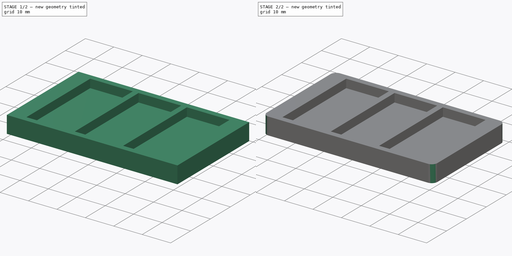
[diagram: build sequence overview — one tinted view per stage of 2, left to right]
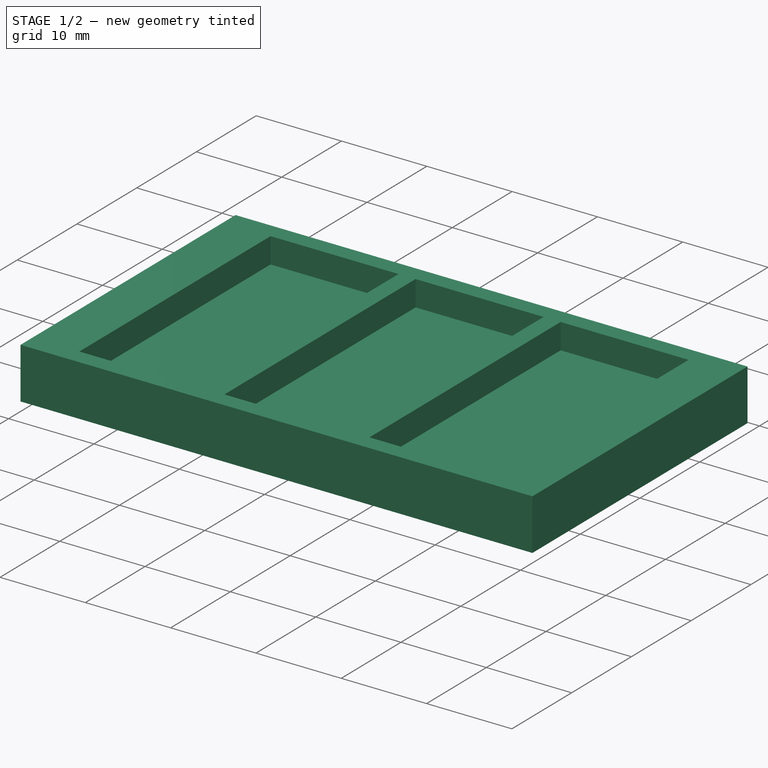
[diagram: stage 1 of 2 — iso view after this stage's code; geometry added in this stage tinted green]
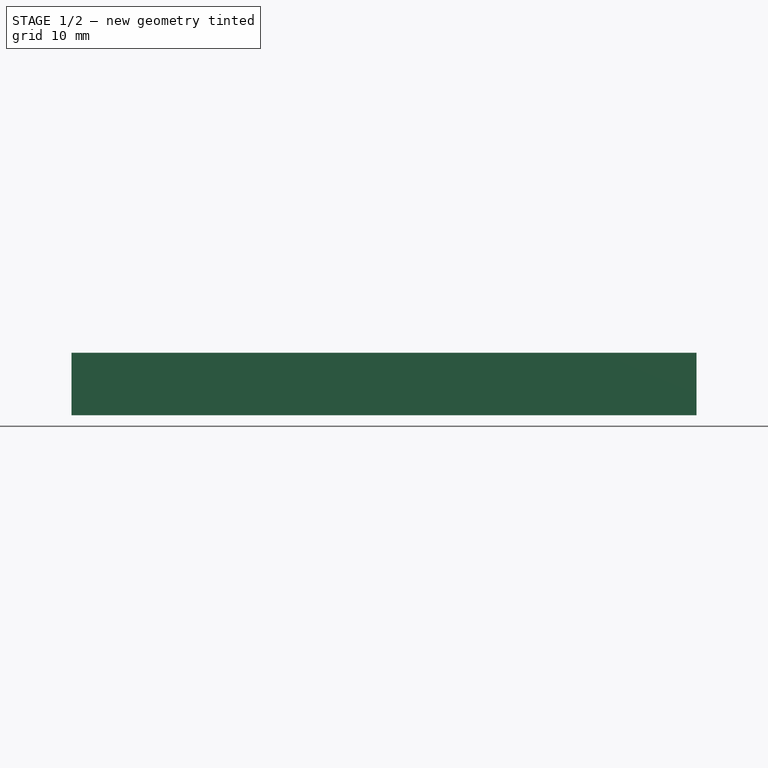
[diagram: stage 1 of 2 — front view after this stage's code; geometry added in this stage tinted green]
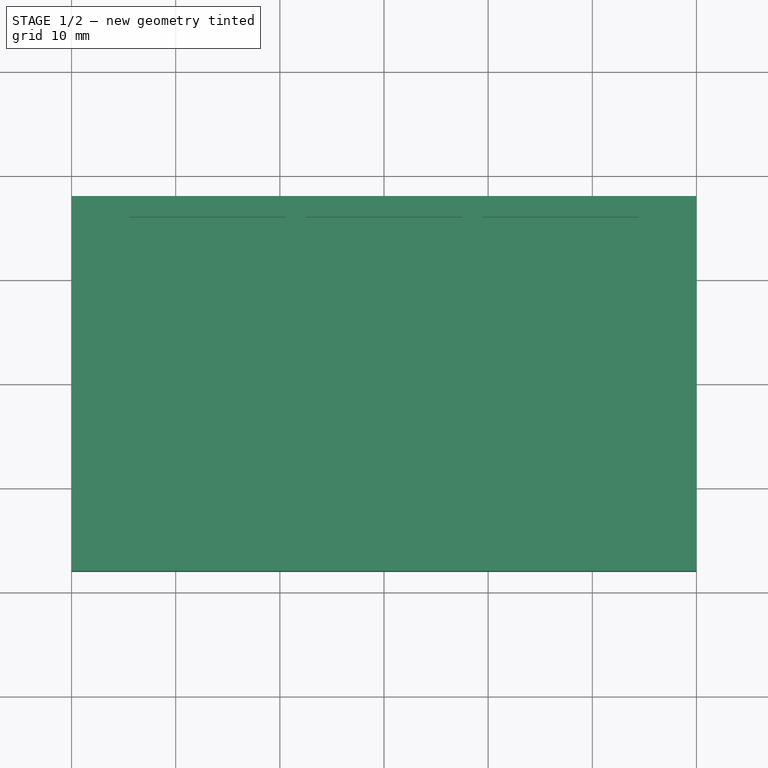
[diagram: stage 1 of 2 — top view after this stage's code; geometry added in this stage tinted green]
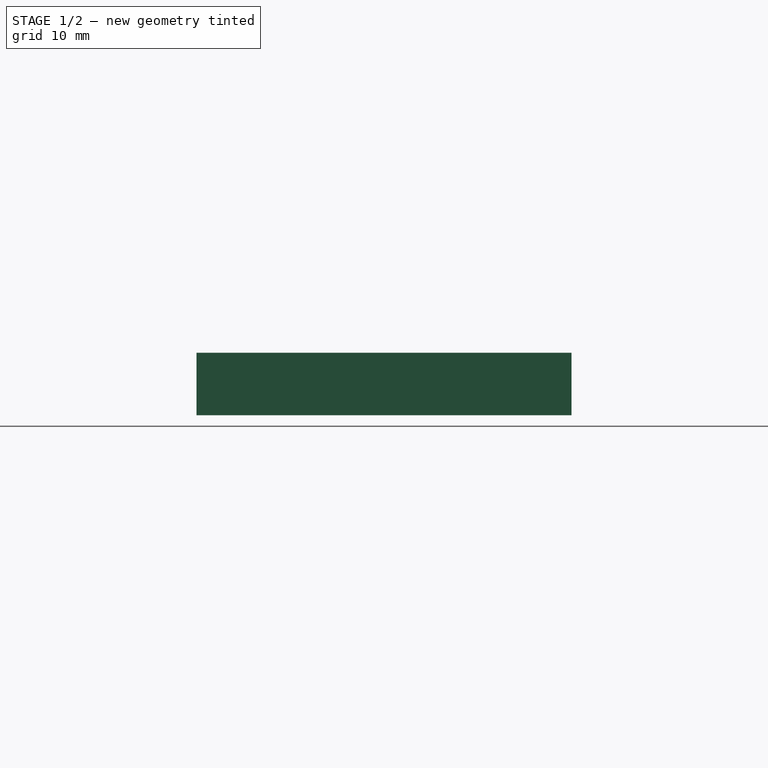
[diagram: stage 1 of 2 — right view after this stage's code; geometry added in this stage tinted green]
FCSTD DOCUMENT  (FreeCAD 0.20R29603 (Git))
Label: ldr_readout_case
License: All rights reserved
LicenseURL: http://en.wikipedia.org/wiki/All_rights_reserved
objects: Sketcher::SketchObject×2, PartDesign::Plane×2, PartDesign::Pad×1, PartDesign::Pocket×1, PartDesign::Fillet×1, PartDesign::Body×1
note: 11 computed .brp shape members not serialized (recipe doc carries the construction recipe); baked Part::Feature solids carry a one-line shape summary decoded from their .brp

FEATURE [Sketcher::SketchObject] Sketch
  FullyConstrained = true
  MapMode = 5
  Support = -> [XY_Plane]
  sketch-geometry (4):
    g0: LineSegment StartX=-30 StartY=18 StartZ=0 EndX=30 EndY=18 EndZ=0
    g1: LineSegment StartX=30 StartY=18 StartZ=0 EndX=30 EndY=-18 EndZ=0
    g2: LineSegment StartX=30 StartY=-18 StartZ=0 EndX=-30 EndY=-18 EndZ=0
    g3: LineSegment StartX=-30 StartY=-18 StartZ=0 EndX=-30 EndY=18 EndZ=0
  constraints (10):
    c: Coincident(g0,g1)
    c: Coincident(g1,g2)
    c: Coincident(g2,g3)
    c: Coincident(g3,g0)
    c: Horizontal(g2)
    c: Vertical(g3)
    c: Symmetric(g0,g1,g-1)
    c: DistanceY(g1,g1) = 36
    c: DistanceX(g0,g0) = 60
    c: Symmetric(g0,g0,g-2)
FEATURE [PartDesign::Plane] DatumPlane
  AttachmentOffset = pos=(0,0,3) rot=(0,0,1;0rad)
  Length = 70.9545
  MapMode = 5
  Placement = pos=(0,0,3) rot=(0,0,1;0rad)
  ResizeMode = 0
  Support = -> [XY_Plane]
  Width = 60.9545
FEATURE [PartDesign::Plane] DatumPlane001
  AttachmentOffset = pos=(0,0,3) rot=(0,0,1;0rad)
  Length = 70.9545
  MapMode = 2
  Placement = pos=(0,0,6) rot=(0,0,1;0rad)
  ResizeMode = 0
  Support = -> [DatumPlane]
  Width = 60.9545
FEATURE [PartDesign::Pad] Pad
  Direction = (0,0,1)
  Length = 10
  Length2 = 10
  Profile = -> Sketch
  ReferenceAxis = -> Sketch [N_Axis]
  Type = 3
  UpToFace = -> DatumPlane001 [Plane]
FEATURE [Sketcher::SketchObject] Sketch001
  FullyConstrained = true
  MapMode = 5
  Placement = pos=(0,0,6) rot=(0,0,1;0rad)
  Support = -> [DatumPlane001]
  sketch-geometry (14):
    g0: LineSegment StartX=-7.5 StartY=16 StartZ=0 EndX=7.5 EndY=16 EndZ=0
    g1: LineSegment StartX=7.5 StartY=16 StartZ=0 EndX=7.5 EndY=-16 EndZ=0
    g2: LineSegment StartX=7.5 StartY=-16 StartZ=0 EndX=-7.5 EndY=-16 EndZ=0
    g3: LineSegment StartX=-7.5 StartY=-16 StartZ=0 EndX=-7.5 EndY=16 EndZ=0
    g4: LineSegment StartX=-24.5 StartY=16 StartZ=0 EndX=-9.5 EndY=16 EndZ=0
    g5: LineSegment StartX=-9.5 StartY=16 StartZ=0 EndX=-9.5 EndY=-16 EndZ=0
    g6: LineSegment StartX=-9.5 StartY=-16 StartZ=0 EndX=-24.5 EndY=-16 EndZ=0
    g7: LineSegment StartX=-24.5 StartY=-16 StartZ=0 EndX=-24.5 EndY=16 EndZ=0
    g8: LineSegment StartX=9.5 StartY=16 StartZ=0 EndX=24.5 EndY=16 EndZ=0
    g9: LineSegment StartX=24.5 StartY=16 StartZ=0 EndX=24.5 EndY=-16 EndZ=0
    g10: LineSegment StartX=24.5 StartY=-16 StartZ=0 EndX=9.5 EndY=-16 EndZ=0
    g11: LineSegment StartX=9.5 StartY=-16 StartZ=0 EndX=9.5 EndY=16 EndZ=0
    g12: LineSegment StartX=-9.5 StartY=16 StartZ=0 EndX=-7.5 EndY=16 EndZ=0
    g13: LineSegment StartX=7.5 StartY=16 StartZ=0 EndX=9.5 EndY=16 EndZ=0
  constraints (38):
    c: Coincident(g0,g1)
    c: Coincident(g1,g2)
    c: Coincident(g2,g3)
    c: Coincident(g3,g0)
    c: Horizontal(g2)
    c: Vertical(g3)
    c: Symmetric(g0,g0,g-2)
    c: Symmetric(g0,g1,g-1)
    c: DistanceX(g0,g0) = 15
    c: DistanceY(g1,g1) = 32
    c: Coincident(g4,g5)
    c: Coincident(g5,g6)
    c: Coincident(g6,g7)
    c: Coincident(g7,g4)
    c: Horizontal(g4)
    c: Horizontal(g6)
    c: Vertical(g5)
    c: Vertical(g7)
    c: Coincident(g8,g9)
    c: Coincident(g9,g10)
    c: Coincident(g10,g11)
    c: Coincident(g11,g8)
    c: Horizontal(g8)
    c: Horizontal(g10)
    c: Vertical(g9)
    c: Vertical(g11)
    c: Equal(g0,g8)
    c: Equal(g8,g4)
    c: Horizontal(g4,g0)
    c: Horizontal(g0,g8)
    c: Horizontal(g5,g1)
    c: Horizontal(g1,g9)
    c: Coincident(g12,g4)
    c: Coincident(g12,g0)
    c: Coincident(g13,g0)
    c: Coincident(g13,g8)
    c: Equal(g13,g12)
    c: DistanceX(g13,g13) = 2
FEATURE [PartDesign::Pocket] Pocket
  BaseFeature = -> Pad
  Direction = (0,0,-1)
  Length = 0
  Length2 = 5
  Profile = -> Sketch001
  ReferenceAxis = -> Sketch001 [N_Axis]
  Type = 3
  UpToFace = -> DatumPlane [Plane]
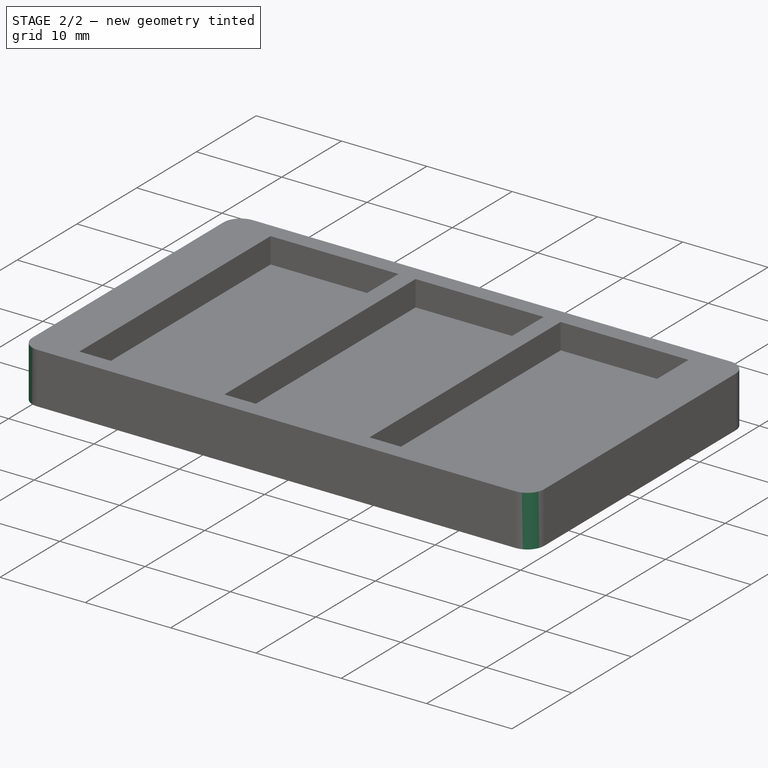
[diagram: stage 2 of 2 — iso view after this stage's code; geometry added in this stage tinted green]
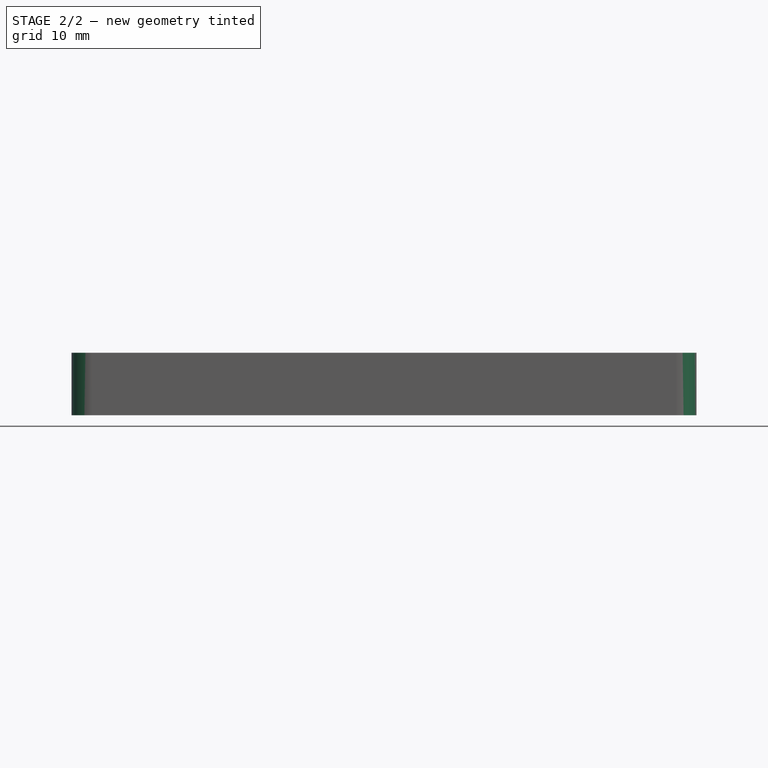
[diagram: stage 2 of 2 — front view after this stage's code; geometry added in this stage tinted green]
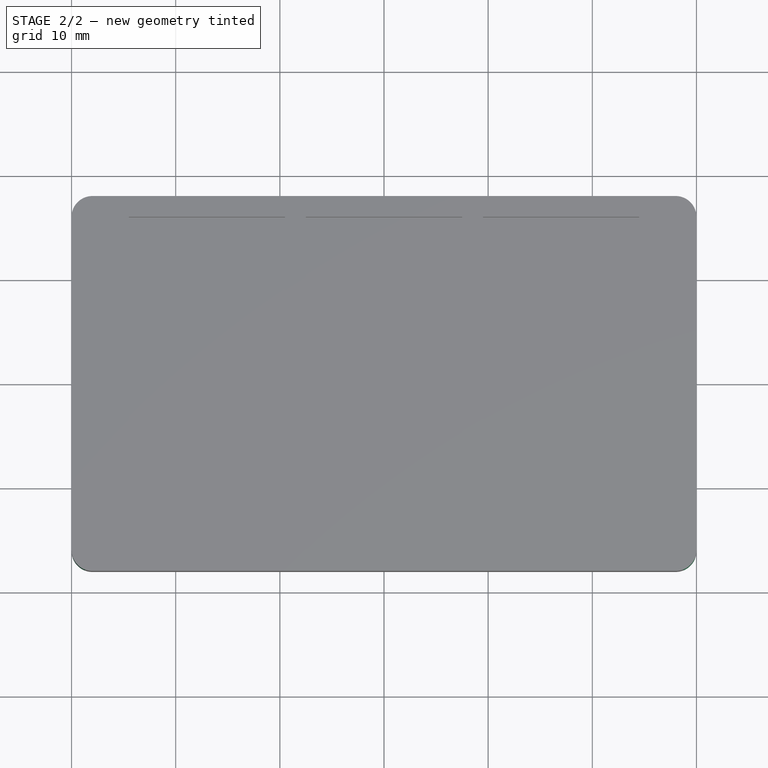
[diagram: stage 2 of 2 — top view after this stage's code; geometry added in this stage tinted green]
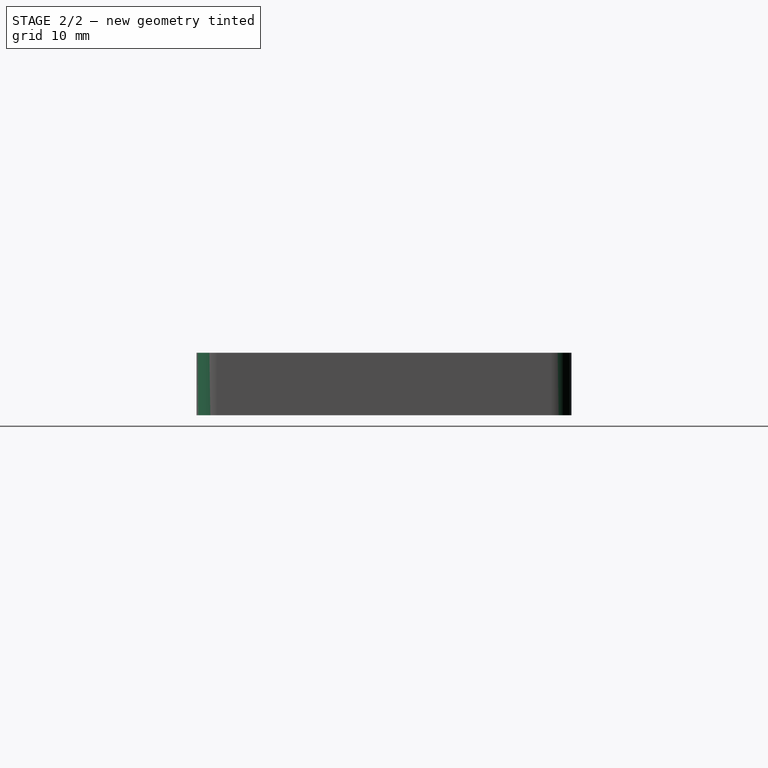
[diagram: stage 2 of 2 — right view after this stage's code; geometry added in this stage tinted green]
FEATURE [PartDesign::Fillet] Fillet
  Base = -> Pocket [Edge24,Edge4,Edge8,Edge2]
  BaseFeature = -> Pocket
  Radius = 2
  SupportTransform = false
  UseAllEdges = false
FEATURE [PartDesign::Body] Body
  Group = -> [DatumPlane,DatumPlane001,Sketch,Pad,Sketch001,Pocket,Fillet]
  Origin = -> Origin
  Tip = -> Fillet
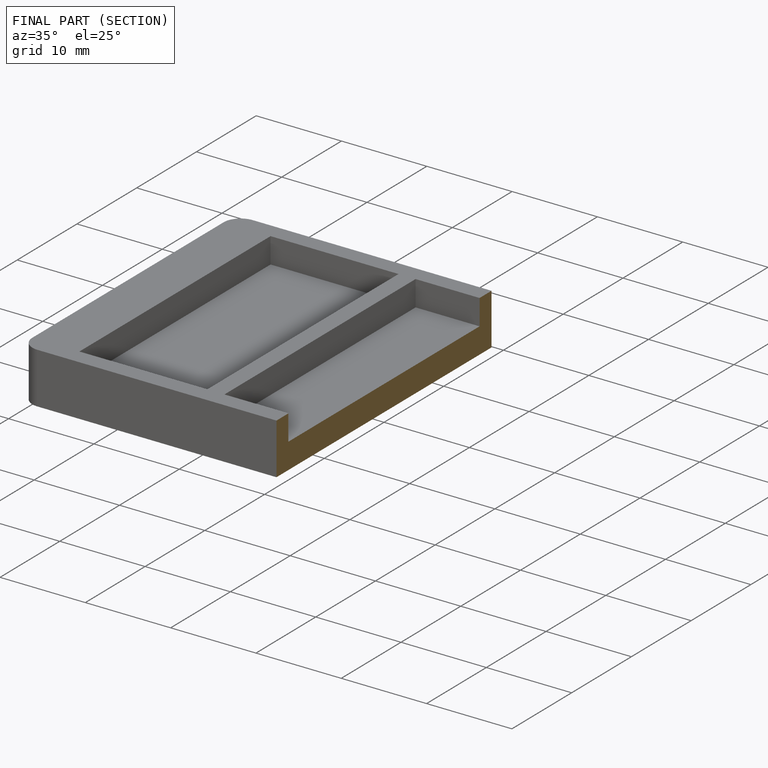
[diagram: finished part — half-section view (interior)]
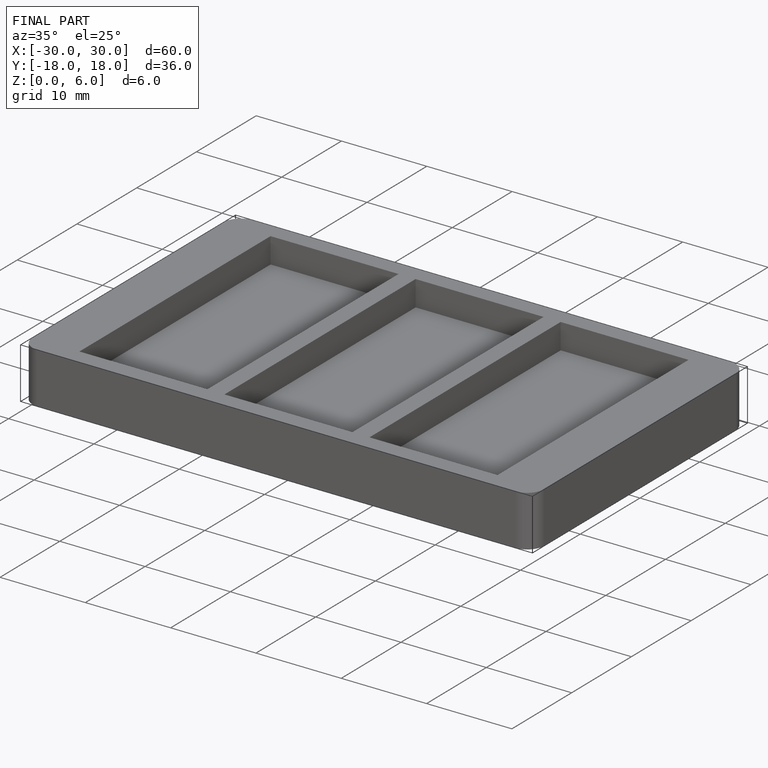
[diagram: finished part — iso view with bounding-box wireframe]
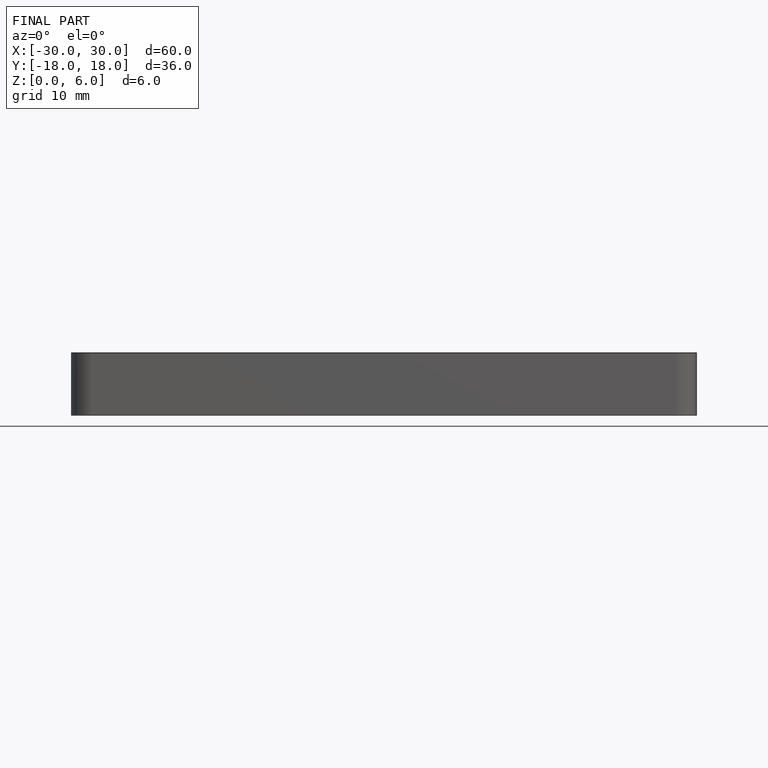
[diagram: finished part — front view with bounding-box wireframe]
